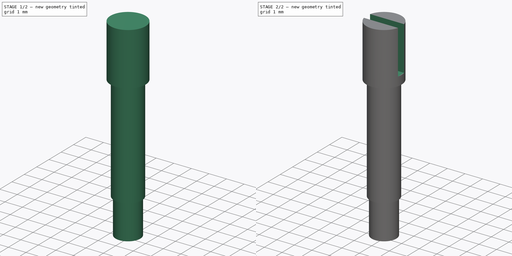
[diagram: build sequence overview — one tinted view per stage of 2, left to right]
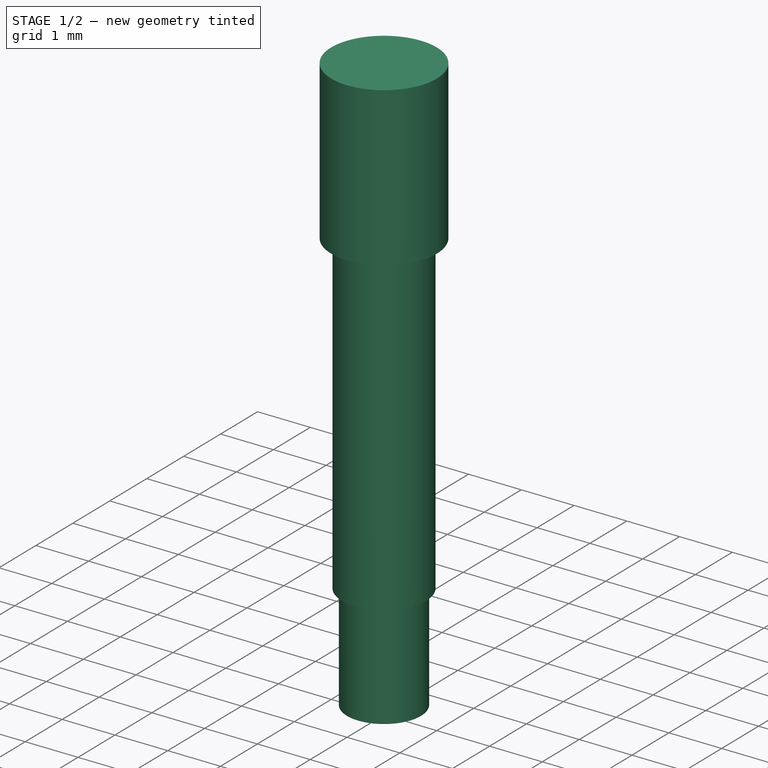
[diagram: stage 1 of 2 — iso view after this stage's code; geometry added in this stage tinted green]
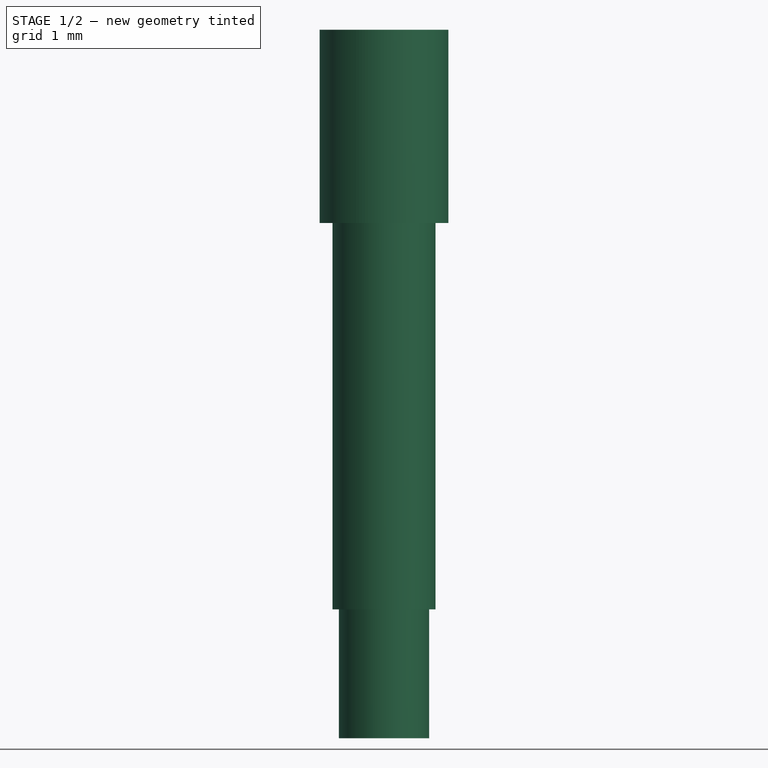
[diagram: stage 1 of 2 — front view after this stage's code; geometry added in this stage tinted green]
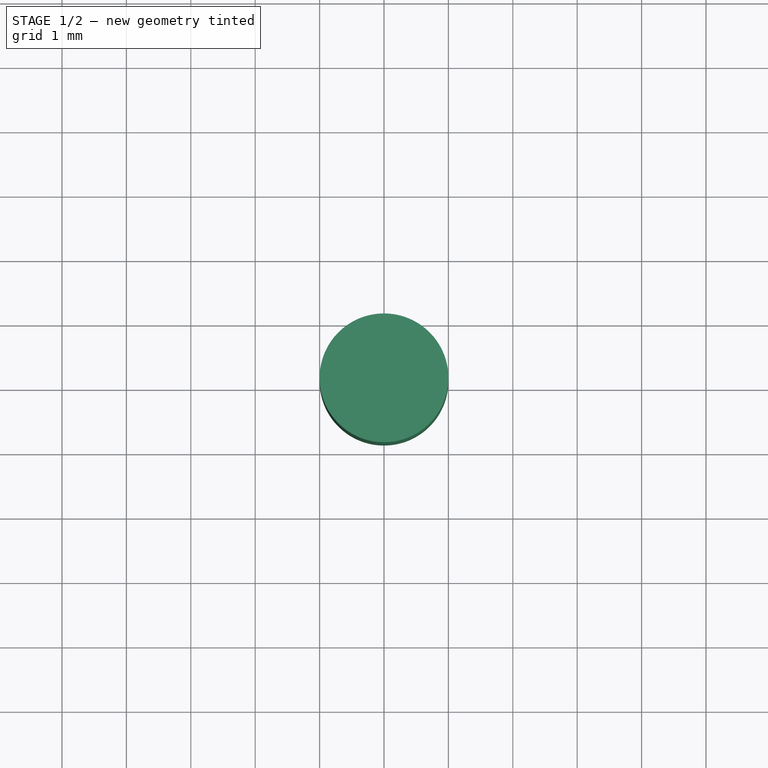
[diagram: stage 1 of 2 — top view after this stage's code; geometry added in this stage tinted green]
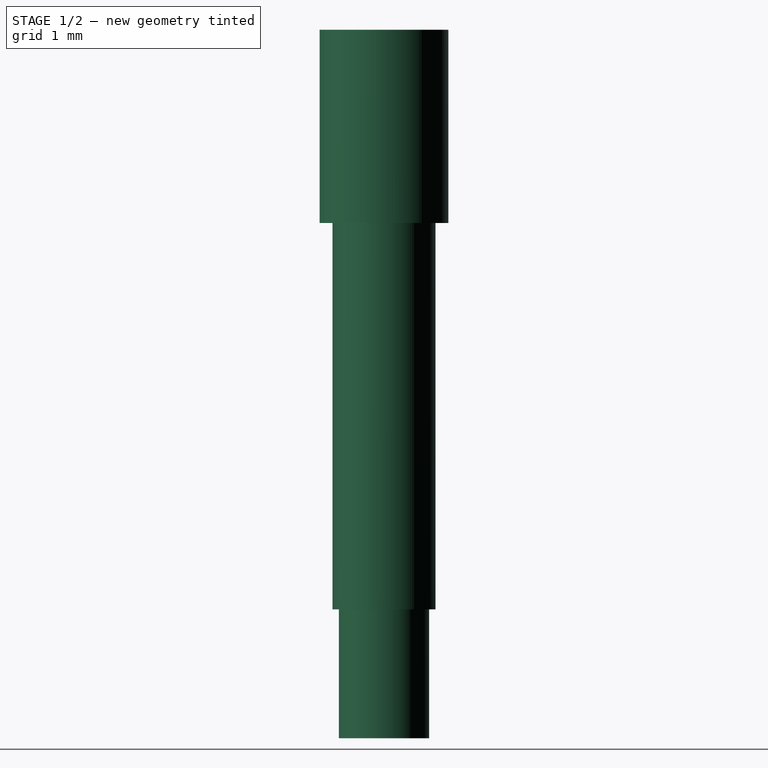
[diagram: stage 1 of 2 — right view after this stage's code; geometry added in this stage tinted green]
FCSTD DOCUMENT  (FreeCAD 0.19.4R1_voidlinux)
Label: wheel_axis
License: All rights reserved
LicenseURL: http://en.wikipedia.org/wiki/All_rights_reserved
objects: Sketcher::SketchObject×2, PartDesign::Revolution×1, PartDesign::Pocket×1, PartDesign::Body×1, PartDesign::CoordinateSystem×1, App::Part×1
note: 8 computed .brp shape members not serialized (recipe doc carries the construction recipe); baked Part::Feature solids carry a one-line shape summary decoded from their .brp
EXTERNAL_REF file=master_animator.FCStd obj=Variables

FEATURE [Sketcher::SketchObject] Sketch
  FullyConstrained = true
  MapMode = 5
  Placement = pos=(0,0,0) rot=(0.57735,0.57735,0.57735;2.0944rad)
  Support = -> [YZ_Plane001]
  sketch-geometry (8):
    g0: LineSegment StartX=0 StartY=0 StartZ=0 EndX=-1 EndY=0 EndZ=0
    g1: LineSegment StartX=-1 StartY=0 StartZ=0 EndX=-1 EndY=-3 EndZ=0
    g2: LineSegment StartX=-1 StartY=-3 StartZ=0 EndX=-0.8 EndY=-3 EndZ=0
    g3: LineSegment StartX=-0.8 StartY=-3 StartZ=0 EndX=-0.8 EndY=-9 EndZ=0
    g4: LineSegment StartX=-0.8 StartY=-9 StartZ=0 EndX=-0.7 EndY=-9 EndZ=0
    g5: LineSegment StartX=-0.7 StartY=-9 StartZ=0 EndX=-0.7 EndY=-11 EndZ=0
    g6: LineSegment StartX=-0.7 StartY=-11 StartZ=0 EndX=0 EndY=-11 EndZ=0
    g7: LineSegment StartX=0 StartY=-11 StartZ=0 EndX=0 EndY=0 EndZ=0
  constraints (23):
    c: Coincident(g0,g-1)
    c: PointOnObject(g0,g-1)
    c: Coincident(g1,g0)
    c: Vertical(g1)
    c: Coincident(g2,g1)
    c: Horizontal(g2)
    c: Coincident(g3,g2)
    c: Vertical(g3)
    c: Coincident(g4,g3)
    c: Horizontal(g4)
    c: Coincident(g5,g4)
    c: Vertical(g5)
    c: Coincident(g6,g5)
    c: PointOnObject(g6,g-2)
    c: Coincident(g7,g6)
    c: Coincident(g7,g0)
    c: Horizontal(g6)
    c: Distance(g5) = 2
    c: DistanceY(g3,g0) = 9
    c: Distance(g0) = 1
    c: Distance(g2) = 0.2
    c: Distance(g4) = 0.1
    c: Distance(g1) = 3
FEATURE [PartDesign::Revolution] Revolution
  Angle = 360
  Axis = (-2e-16,3e-16,1)
  Base = (0,0,0)
  Placement = pos=(0,0,0) rot=(0.57735,0.57735,0.57735;2.0944rad)
  Profile = -> Sketch
  ReferenceAxis = -> Sketch [V_Axis]
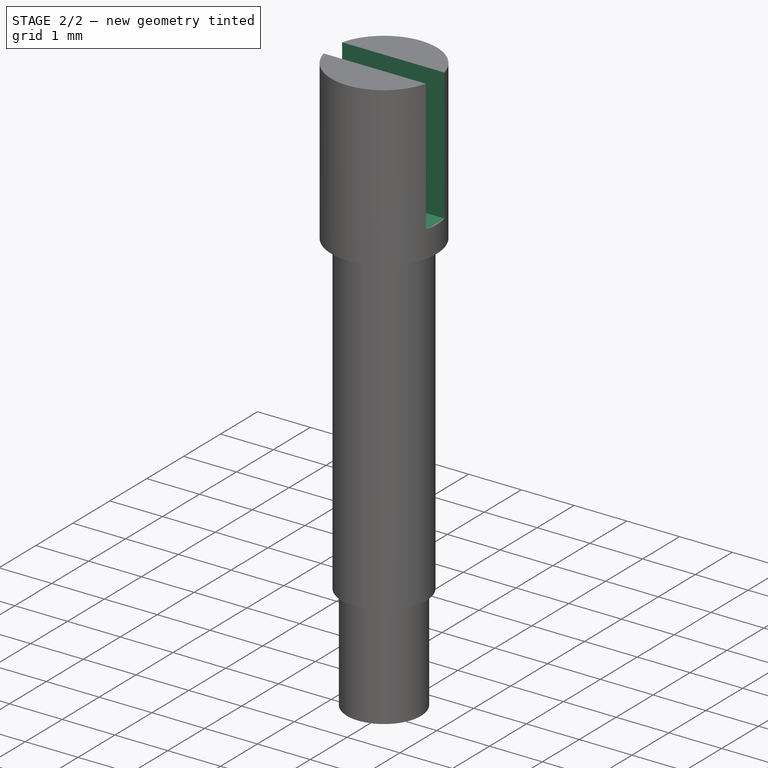
[diagram: stage 2 of 2 — iso view after this stage's code; geometry added in this stage tinted green]
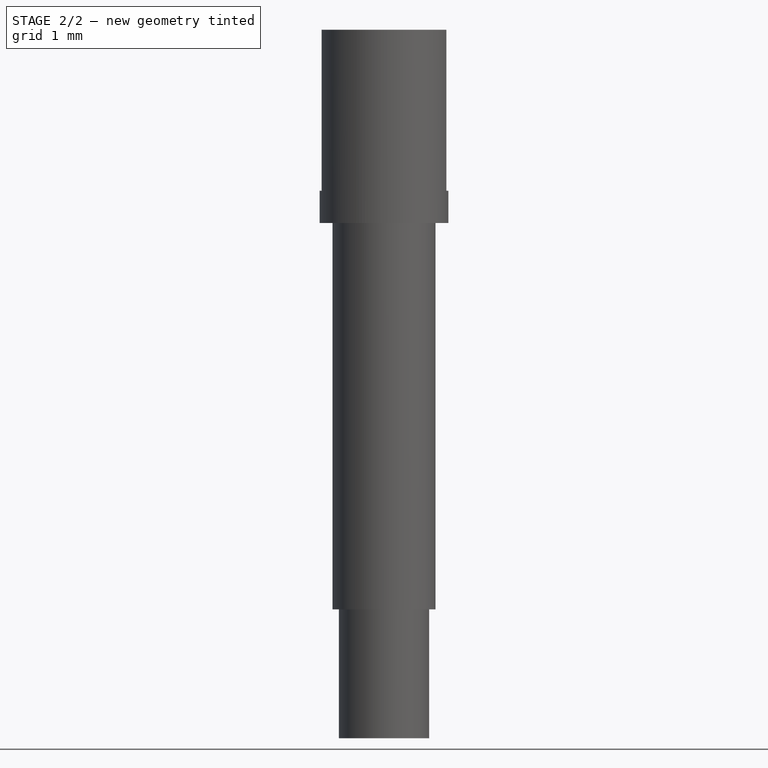
[diagram: stage 2 of 2 — front view after this stage's code; geometry added in this stage tinted green]
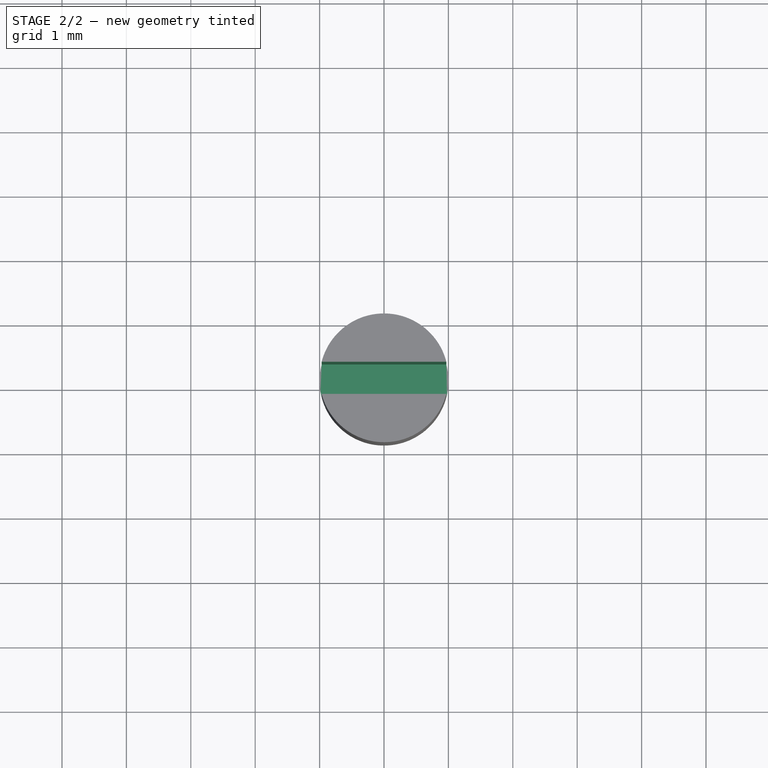
[diagram: stage 2 of 2 — top view after this stage's code; geometry added in this stage tinted green]
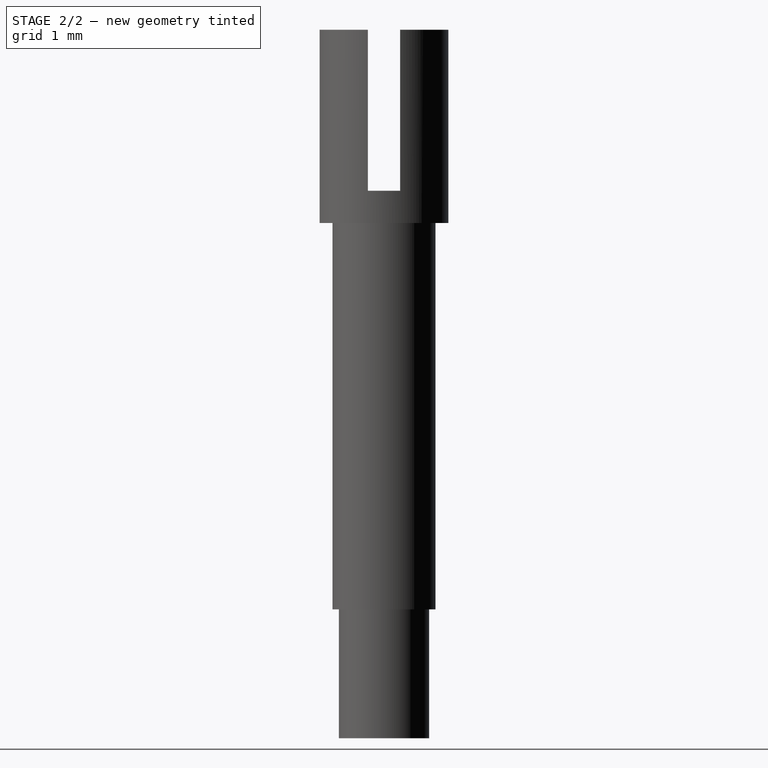
[diagram: stage 2 of 2 — right view after this stage's code; geometry added in this stage tinted green]
FEATURE [Sketcher::SketchObject] Sketch001
  ExternalGeometry = -> [Revolution]
  FullyConstrained = true
  MapMode = 5
  Placement = pos=(0,0,0) rot=(0,0,-1;1.5708rad)
  Support = -> [Revolution]
  sketch-geometry (5):
    g0: LineSegment StartX=0 StartY=0 StartZ=0 EndX=0 EndY=1 EndZ=0
    g1: LineSegment StartX=-0.25 StartY=1 StartZ=0 EndX=0.25 EndY=1 EndZ=0
    g2: LineSegment StartX=-0.25 StartY=-1 StartZ=0 EndX=0.25 EndY=-1 EndZ=0
    g3: LineSegment StartX=-0.25 StartY=1 StartZ=0 EndX=-0.25 EndY=-1 EndZ=0
    g4: LineSegment StartX=0.25 StartY=1 StartZ=0 EndX=0.25 EndY=-1 EndZ=0
  constraints (12):
    c: Coincident(g0,g-1)
    c: PointOnObject(g0,g-3)
    c: Vertical(g0)
    c: Horizontal(g1)
    c: Symmetric(g1,g1,g0)
    c: Distance(g1) = 0.5
    c: Symmetric(g2,g1,g-1)
    c: Symmetric(g2,g1,g-1)
    c: Coincident(g3,g1)
    c: Coincident(g3,g2)
    c: Coincident(g4,g1)
    c: Coincident(g4,g2)
FEATURE [PartDesign::Pocket] Pocket
  BaseFeature = -> Revolution
  Length = 2.5
  Length2 = 100
  Placement = pos=(0,0,0) rot=(0.57735,0.57735,0.57735;2.0944rad)
  Profile = -> Sketch001
  Type = 0
FEATURE [PartDesign::Body] Body
  Group = -> [Sketch,Revolution,Sketch001,Pocket]
  Origin = -> Origin001
  Tip = -> Pocket
FEATURE [PartDesign::CoordinateSystem] LCS_axis_rest
  AttacherType = Attacher::AttachEngine3D
  MapMode = 11
  Placement = pos=(1.3e-15,-9e-16,-3) rot=(0,0,1;0rad)
  Support = -> [Pocket]
  expr: .AttachmentOffset.Base.z = -master_animator#Variables.explode * 2
FEATURE [App::Part] Part  label="wheel_axis"
  Group = -> [Body,LCS_axis_rest]
  Origin = -> Origin
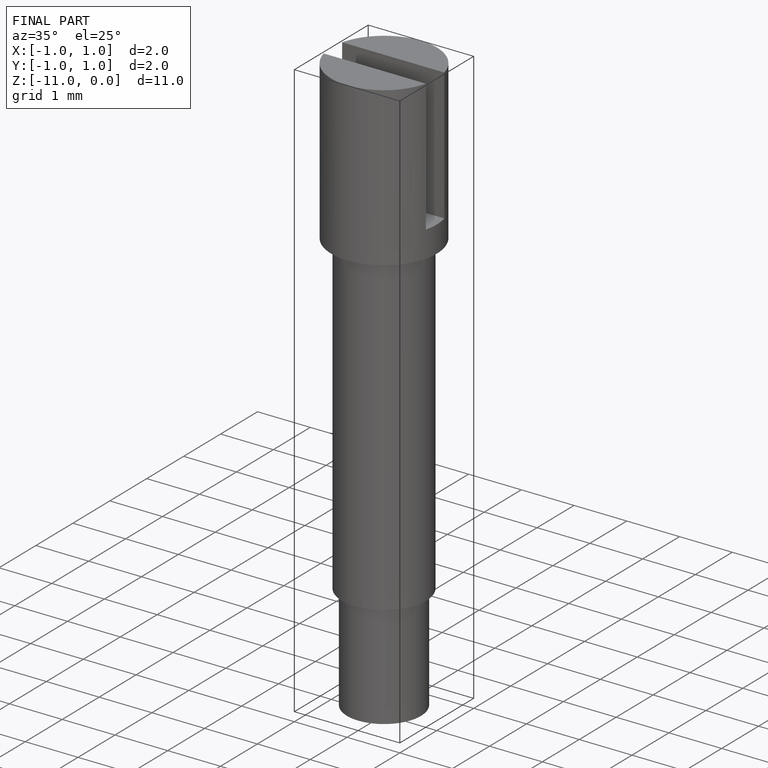
[diagram: finished part — iso view with bounding-box wireframe]
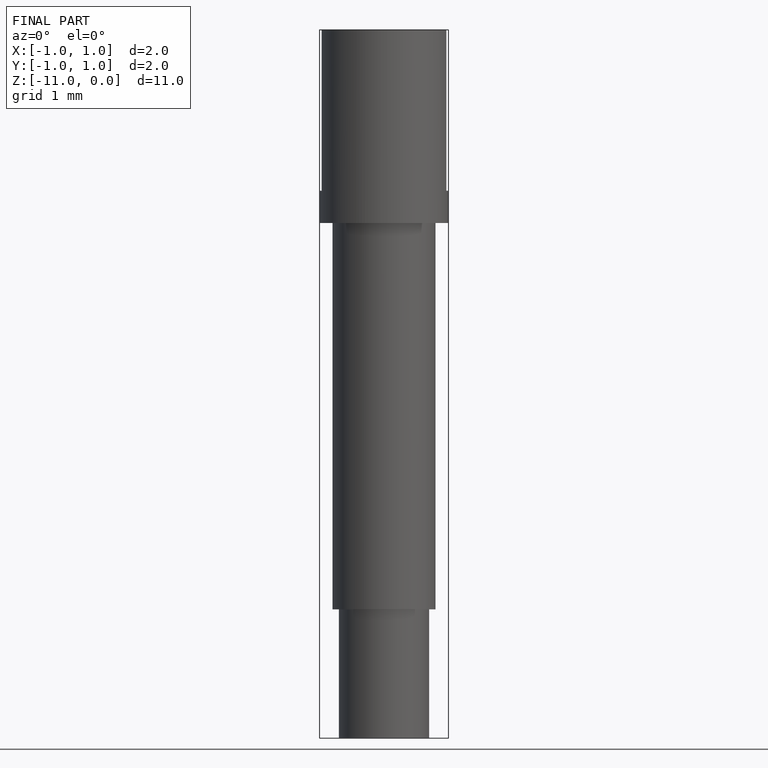
[diagram: finished part — front view with bounding-box wireframe]
